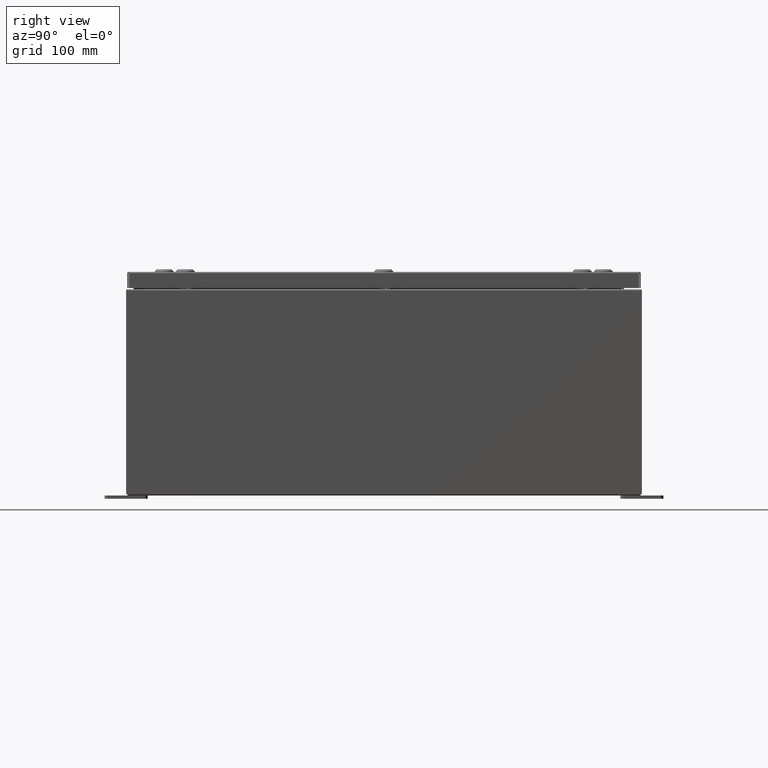
[diagram: clean part render]
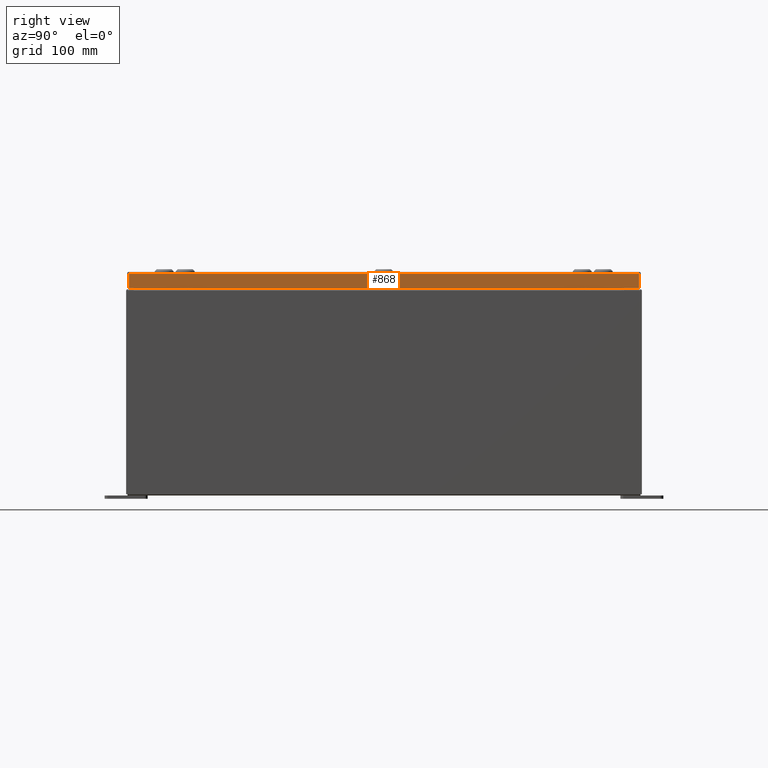
[diagram: same view with one face highlighted and labeled with its STEP entity id]
A machine part, right view. The second image highlights one B-rep face of the part: STEP entity #868.
In plain terms, the highlighted planar face has unit normal (1, 0, 0).
Its self-contained STEP definition (entity closure, byte-faithful):
#868 = ADVANCED_FACE ( 'NONE', ( #30260 ), #17289, .T. ) ;
#8802 = VERTEX_POINT ( 'NONE', #56744 ) ;
#9336 = EDGE_LOOP ( 'NONE', ( #61437, #32526, #25302, #60550 ) ) ;
#10776 = CARTESIAN_POINT ( 'NONE',  ( 11.93750000000000000, -14.84865786437626400, -0.07469999999999980800 ) ) ;
#15783 = DIRECTION ( 'NONE',  ( -2.532419924601866100E-015, -6.982962677686265900E-015, 1.000000000000000000 ) ) ;
#17289 = PLANE ( 'NONE',  #39299 ) ;
#20313 = DIRECTION ( 'NONE',  ( -2.532419924601866100E-015, -6.982962677686265900E-015, 1.000000000000000000 ) ) ;
#21522 = LINE ( 'NONE', #53181, #60979 ) ;
#23770 = VERTEX_POINT ( 'NONE', #50576 ) ;
#24321 = CARTESIAN_POINT ( 'NONE',  ( 11.93750000000000000, 0.0000000000000000000, 3.049157650594635900E-014 ) ) ;
#24542 = CARTESIAN_POINT ( 'NONE',  ( 11.93750000000000000, 0.0000000000000000000, -0.08770000000000008300 ) ) ;
#25302 = ORIENTED_EDGE ( 'NONE', *, *, #60542, .T. ) ;
#28273 = VERTEX_POINT ( 'NONE', #44962 ) ;
#30132 = VECTOR ( 'NONE', #59132, 39.37007874015748100 ) ;
#30260 = FACE_OUTER_BOUND ( 'NONE', #9336, .T. ) ;
#32526 = ORIENTED_EDGE ( 'NONE', *, *, #42847, .F. ) ;
#32622 = EDGE_CURVE ( 'NONE', #28273, #23770, #59515, .T. ) ;
#33446 = DIRECTION ( 'NONE',  ( 2.532419924601866100E-015, 0.0000000000000000000, -1.000000000000000000 ) ) ;
#33497 = DIRECTION ( 'NONE',  ( 0.0000000000000000000, -1.000000000000000000, 0.0000000000000000000 ) ) ;
#36059 = VECTOR ( 'NONE', #20313, 39.37007874015748100 ) ;
#39159 = LINE ( 'NONE', #44995, #36059 ) ;
#39299 = AXIS2_PLACEMENT_3D ( 'NONE', #24321, #55135, #33446 ) ;
#42847 = EDGE_CURVE ( 'NONE', #43479, #8802, #21522, .T. ) ;
#43479 = VERTEX_POINT ( 'NONE', #52607 ) ;
#44962 = CARTESIAN_POINT ( 'NONE',  ( 11.93750000000000000, 14.84865786437626900, -0.08770000000000008300 ) ) ;
#44995 = CARTESIAN_POINT ( 'NONE',  ( 11.93750000000000000, 14.84865786437627100, 1.341792001866185200E-013 ) ) ;
#46084 = VECTOR ( 'NONE', #15783, 39.37007874015748100 ) ;
#47635 = LINE ( 'NONE', #10776, #46084 ) ;
#50576 = CARTESIAN_POINT ( 'NONE',  ( 11.93750000000000000, -14.84865786437626400, -0.08770000000000008300 ) ) ;
#52607 = CARTESIAN_POINT ( 'NONE',  ( 11.93750000000000200, 14.84865786437627800, -0.9376999999999997600 ) ) ;
#53181 = CARTESIAN_POINT ( 'NONE',  ( 11.93750000000000200, -14.93749999999999500, -0.9376999999999997600 ) ) ;
#55135 = DIRECTION ( 'NONE',  ( 1.000000000000000000, 0.0000000000000000000, 2.532419924601866100E-015 ) ) ;
#56744 = CARTESIAN_POINT ( 'NONE',  ( 11.93750000000000200, -14.84865786437625900, -0.9376999999999997600 ) ) ;
#59132 = DIRECTION ( 'NONE',  ( 0.0000000000000000000, -1.000000000000000000, 0.0000000000000000000 ) ) ;
#59515 = LINE ( 'NONE', #24542, #30132 ) ;
#60542 = EDGE_CURVE ( 'NONE', #43479, #28273, #39159, .T. ) ;
#60550 = ORIENTED_EDGE ( 'NONE', *, *, #32622, .T. ) ;
#60628 = EDGE_CURVE ( 'NONE', #8802, #23770, #47635, .T. ) ;
#60979 = VECTOR ( 'NONE', #33497, 39.37007874015748100 ) ;
#61437 = ORIENTED_EDGE ( 'NONE', *, *, #60628, .F. ) ;